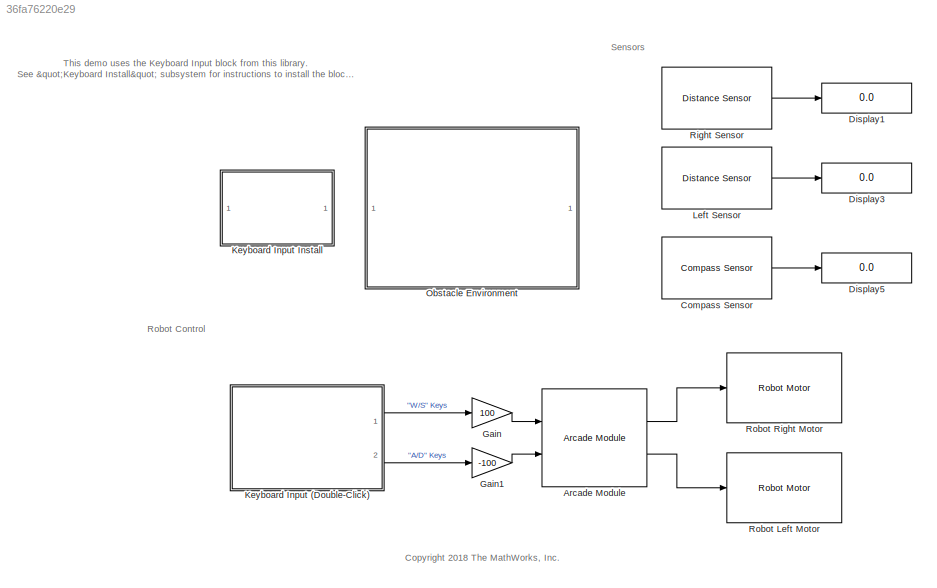
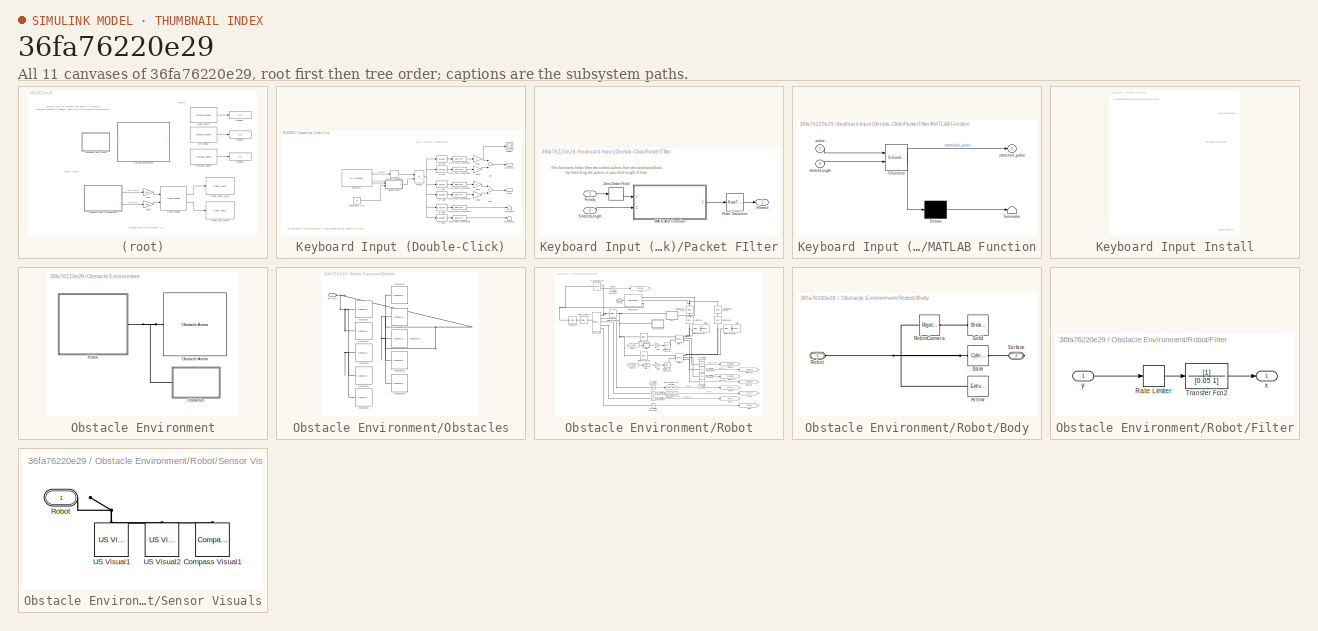
[diagram: thumbnail index - all 11 canvases of the model, root first then tree order]
MODEL slx_36fa76220e29
KIND model
CONFIG AbsTol = auto
CONFIG EnableMultiTasking = on
CONFIG FixedStep = 0.01
CONFIG InitFcn = RPInit
CONFIG MaxStep = auto
CONFIG MinStep = auto
CONFIG RelTol = 1e-3
CONFIG SampleTimeConstraint = Unconstrained
CONFIG Solver = ode23t
CONFIG SolverName = ode23t
CONFIG StartTime = 0.0
CONFIG StopTime = inf
WORKSPACE source: mxarray member
WORKSPACE mapForSim: object (value not decoded)
WORKSPACE occGrid: robotics.BinaryOccupancyGrid (value not decoded)
BLOCK [Reference] Arcade Module  REF=vexcommonlib/Arcade Module
  Ports = [2, 2]
  SourceBlock = vexcommonlib/Arcade Module
  SourceProductBaseCode = EC_VEX_MICRO
  SourceProductName = Simulink Coder Support Package for ARM Cortex-based VEX Microcontroller
  SourceType = Arcade-2 Motors Module
BLOCK [Reference] Compass Sensor  REF=RoboticsPlayground/Basic Sensors and Actuators/Compass Sensor
  Ports = [0, 1]
  SourceBlock = RoboticsPlayground/Basic Sensors and Actuators/Compass Sensor
  SourceProductName = Robotics Playground
  SourceType = RP Compass Sensor
BLOCK [Display] Display1
  Decimation = 1
  Ports = [1]
BLOCK [Display] Display3
  Decimation = 1
  Ports = [1]
BLOCK [Display] Display5
  Decimation = 1
  Ports = [1]
BLOCK [Gain] Gain
  Gain = 100
  OutDataTypeStr = Inherit: Inherit via internal rule
  ParamDataTypeStr = Inherit: Inherit via internal rule
  SaturateOnIntegerOverflow = off
BLOCK [Gain] Gain1
  Gain = -100
  OutDataTypeStr = Inherit: Inherit via internal rule
  ParamDataTypeStr = Inherit: Inherit via internal rule
  SaturateOnIntegerOverflow = off
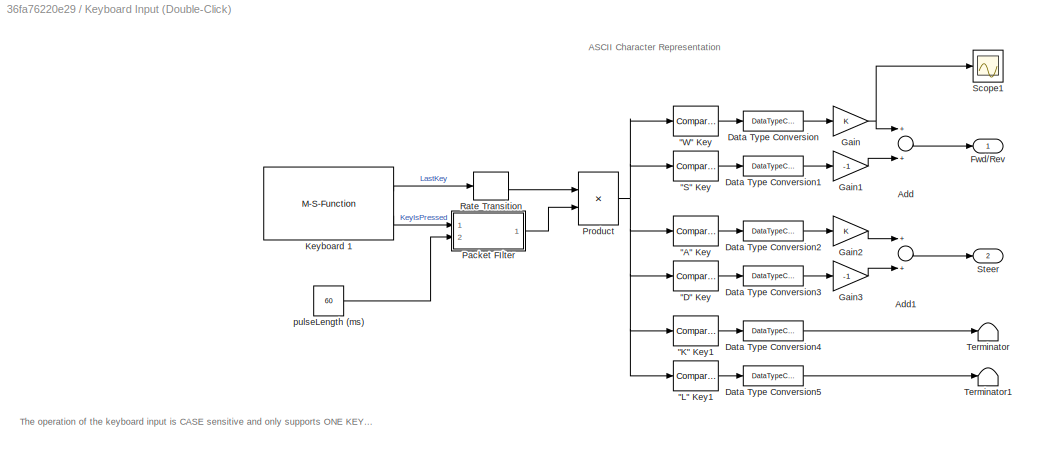
BLOCK [SubSystem] Keyboard Input (Double-Click)
  Ports = [0, 2]
  RequestExecContextInheritance = off
BLOCK [Reference] Keyboard Input (Double-Click)/"A" Key  REF=simulink/Logic and Bit
Operations/Compare
To Constant
  Ports = [1, 1]
  SourceBlock = simulink/Logic and Bit\nOperations/Compare\nTo Constant
  SourceProductBaseCode = SL
  SourceType = Compare To Constant
BLOCK [Reference] Keyboard Input (Double-Click)/"D" Key  REF=simulink/Logic and Bit
Operations/Compare
To Constant
  Ports = [1, 1]
  SourceBlock = simulink/Logic and Bit\nOperations/Compare\nTo Constant
  SourceProductBaseCode = SL
  SourceType = Compare To Constant
BLOCK [Reference] Keyboard Input (Double-Click)/"K" Key1  REF=simulink/Logic and Bit
Operations/Compare
To Constant
  Ports = [1, 1]
  SourceBlock = simulink/Logic and Bit\nOperations/Compare\nTo Constant
  SourceProductBaseCode = SL
  SourceType = Compare To Constant
BLOCK [Reference] Keyboard Input (Double-Click)/"L" Key1  REF=simulink/Logic and Bit
Operations/Compare
To Constant
  Ports = [1, 1]
  SourceBlock = simulink/Logic and Bit\nOperations/Compare\nTo Constant
  SourceProductBaseCode = SL
  SourceType = Compare To Constant
BLOCK [Reference] Keyboard Input (Double-Click)/"S" Key  REF=simulink/Logic and Bit
Operations/Compare
To Constant
  Ports = [1, 1]
  SourceBlock = simulink/Logic and Bit\nOperations/Compare\nTo Constant
  SourceProductBaseCode = SL
  SourceType = Compare To Constant
BLOCK [Reference] Keyboard Input (Double-Click)/"W" Key  REF=simulink/Logic and Bit
Operations/Compare
To Constant
  Ports = [1, 1]
  SourceBlock = simulink/Logic and Bit\nOperations/Compare\nTo Constant
  SourceProductBaseCode = SL
  SourceType = Compare To Constant
BLOCK [Sum] Keyboard Input (Double-Click)/Add
  InputSameDT = off
  OutDataTypeStr = Inherit: Inherit via internal rule
  Ports = [2, 1]
  SaturateOnIntegerOverflow = off
BLOCK [Sum] Keyboard Input (Double-Click)/Add1
  InputSameDT = off
  OutDataTypeStr = Inherit: Inherit via internal rule
  Ports = [2, 1]
  SaturateOnIntegerOverflow = off
BLOCK [DataTypeConversion] Keyboard Input (Double-Click)/Data Type Conversion
  OutDataTypeStr = double
  RndMeth = Floor
  SaturateOnIntegerOverflow = off
BLOCK [DataTypeConversion] Keyboard Input (Double-Click)/Data Type Conversion1
  OutDataTypeStr = double
  RndMeth = Floor
  SaturateOnIntegerOverflow = off
BLOCK [DataTypeConversion] Keyboard Input (Double-Click)/Data Type Conversion2
  OutDataTypeStr = double
  RndMeth = Floor
  SaturateOnIntegerOverflow = off
BLOCK [DataTypeConversion] Keyboard Input (Double-Click)/Data Type Conversion3
  OutDataTypeStr = double
  RndMeth = Floor
  SaturateOnIntegerOverflow = off
BLOCK [DataTypeConversion] Keyboard Input (Double-Click)/Data Type Conversion4
  OutDataTypeStr = double
  RndMeth = Floor
  SaturateOnIntegerOverflow = off
BLOCK [DataTypeConversion] Keyboard Input (Double-Click)/Data Type Conversion5
  OutDataTypeStr = double
  RndMeth = Floor
  SaturateOnIntegerOverflow = off
BLOCK [Outport] Keyboard Input (Double-Click)/Fwd//Rev
  IconDisplay = Port number
  VectorParamsAs1DForOutWhenUnconnected = off
BLOCK [Gain] Keyboard Input (Double-Click)/Gain
  OutDataTypeStr = Inherit: Inherit via internal rule
  ParamDataTypeStr = Inherit: Inherit via internal rule
  SaturateOnIntegerOverflow = off
BLOCK [Gain] Keyboard Input (Double-Click)/Gain1
  Gain = -1
  OutDataTypeStr = Inherit: Inherit via internal rule
  ParamDataTypeStr = Inherit: Inherit via internal rule
  SaturateOnIntegerOverflow = off
BLOCK [Gain] Keyboard Input (Double-Click)/Gain2
  OutDataTypeStr = Inherit: Inherit via internal rule
  ParamDataTypeStr = Inherit: Inherit via internal rule
  SaturateOnIntegerOverflow = off
BLOCK [Gain] Keyboard Input (Double-Click)/Gain3
  Gain = -1
  OutDataTypeStr = Inherit: Inherit via internal rule
  ParamDataTypeStr = Inherit: Inherit via internal rule
  SaturateOnIntegerOverflow = off
BLOCK [M-S-Function] Keyboard Input (Double-Click)/Keyboard 1
  FunctionName = sfun_keyboard_input_v1_2b
  Ports = [0, 2]
BLOCK [SubSystem] Keyboard Input (Double-Click)/Packet FIlter
  Ports = [2, 1]
  RequestExecContextInheritance = off
BLOCK [Outport] Keyboard Input (Double-Click)/Packet FIlter/Filtered
  IconDisplay = Port number
BLOCK [SubSystem] Keyboard Input (Double-Click)/Packet FIlter/MATLAB Function
  ErrorFcn = Stateflow.Translate.translate
  PermitHierarchicalResolution = ExplicitOnly
  Ports = [2, 1]
  RequestExecContextInheritance = off
  SFBlockType = MATLAB Function
  TreatAsAtomicUnit = on
BLOCK [Demux] Keyboard Input (Double-Click)/Packet FIlter/MATLAB Function/ Demux 
  DisplayOption = bar
  Outputs = 1
  Ports = [1, 1]
BLOCK [S-Function] Keyboard Input (Double-Click)/Packet FIlter/MATLAB Function/ SFunction 
  EnableBusSupport = on
  FunctionName = sf_sfun
  PortCounts = [2 2]
  Ports = [2, 2]
  SFcnIsStateOwnerBlock = off
  SFunctionDeploymentMode = off
  Tag = Stateflow S-Function 12
BLOCK [Terminator] Keyboard Input (Double-Click)/Packet FIlter/MATLAB Function/ Terminator 
BLOCK [Inport] Keyboard Input (Double-Click)/Packet FIlter/MATLAB Function/pulse
  IconDisplay = Port number
BLOCK [Inport] Keyboard Input (Double-Click)/Packet FIlter/MATLAB Function/stretchLength
  IconDisplay = Port number
  Port = 2
BLOCK [Outport] Keyboard Input (Double-Click)/Packet FIlter/MATLAB Function/stretched_pulse
  IconDisplay = Port number
  VectorParamsAs1DForOutWhenUnconnected = off
BLOCK [RateTransition] Keyboard Input (Double-Click)/Packet FIlter/Rate Transition
  OutPortSampleTime = 0.02
BLOCK [Inport] Keyboard Input (Double-Click)/Packet FIlter/Ready
  IconDisplay = Port number
BLOCK [Inport] Keyboard Input (Double-Click)/Packet FIlter/StretchLength
  IconDisplay = Port number
  Port = 2
BLOCK [ZeroOrderHold] Keyboard Input (Double-Click)/Packet FIlter/Zero-Order Hold
  SampleTime = 0.01
BLOCK [Product] Keyboard Input (Double-Click)/Product
  InputSameDT = off
  OutDataTypeStr = Inherit: Inherit via internal rule
  Ports = [2, 1]
  RndMeth = Floor
  SaturateOnIntegerOverflow = off
BLOCK [RateTransition] Keyboard Input (Double-Click)/Rate Transition
BLOCK [Scope] Keyboard Input (Double-Click)/Scope1
  Floating = off
  NumInputPorts = 1
  Ports = [1]
  ScopeSpecificationString = Simulink.scopes.TimeScopeBlockCfg('CurrentConfiguration', extmgr.ConfigurationSet(extmgr.Configuration('Core','General UI',true),extmgr.Configuration('Core','Source UI',true),extmgr.Configuration('Sources','WiredSimulink',true,'DataLoggingVariableName','ScopeData1'),extmgr.Configuration('Visuals','Time Domain',true,'SerializedDisplays',{struct('MinYLimReal','-0.125','MaxYLimReal','1.125','YLabelRe...<+1414ch>
BLOCK [Outport] Keyboard Input (Double-Click)/Steer
  IconDisplay = Port number
  Port = 2
  VectorParamsAs1DForOutWhenUnconnected = off
BLOCK [Terminator] Keyboard Input (Double-Click)/Terminator
BLOCK [Terminator] Keyboard Input (Double-Click)/Terminator1
BLOCK [Constant] Keyboard Input (Double-Click)/pulseLength (ms)
  Value = 60
BLOCK [SubSystem] Keyboard Input Install
  Ports = []
  RequestExecContextInheritance = off
BLOCK [Reference] Left Sensor  REF=RoboticsPlayground/Basic Sensors and Actuators/Distance Sensor
  Ports = [0, 1]
  SourceBlock = RoboticsPlayground/Basic Sensors and Actuators/Distance Sensor
  SourceProductName = Robotics Playground
  SourceType = RP Distance Sensor
BLOCK [SubSystem] Obstacle Environment
  CopyFcn = set_param(gcs,'InitFcn','RPInit');\nset_param(gcs,'Solver','ode23t');\nset_param(gcs, 'EnablePacing', 'on')\nset_param(gcs, 'PacingRate', 1)
  Ports = []
  RequestExecContextInheritance = off
BLOCK [Reference] Obstacle Environment/Obstacle Arena  REF=RP_Simulator_Components/Obstacle Arena
  Ports = [0, 0, 0, 0, 0, 1]
  SourceBlock = RP_Simulator_Components/Obstacle Arena
  SourceType = RP Grid Arena
BLOCK [SubSystem] Obstacle Environment/Obstacles
  Ports = [0, 0, 0, 0, 0, 1]
  RequestExecContextInheritance = off
BLOCK [Reference] Obstacle Environment/Obstacles/Obstacle1  REF=RP_Simulator_Components/Obstacle Contact-Disc Robot
  Ports = [0, 0, 0, 0, 0, 1]
  SourceBlock = RP_Simulator_Components/Obstacle Contact-Disc Robot
  SourceType = RP Rectangle-Disc obstacle
BLOCK [Reference] Obstacle Environment/Obstacles/Obstacle10  REF=RP_Simulator_Components/Obstacle Contact-Disc Robot
  Commented = on
  Ports = [0, 0, 0, 0, 0, 1]
  SourceBlock = RP_Simulator_Components/Obstacle Contact-Disc Robot
  SourceType = RP Rectangle-Disc obstacle
BLOCK [Reference] Obstacle Environment/Obstacles/Obstacle2  REF=RP_Simulator_Components/Obstacle Contact-Disc Robot
  Ports = [0, 0, 0, 0, 0, 1]
  SourceBlock = RP_Simulator_Components/Obstacle Contact-Disc Robot
  SourceType = RP Rectangle-Disc obstacle
BLOCK [Reference] Obstacle Environment/Obstacles/Obstacle3  REF=RP_Simulator_Components/Obstacle Contact-Disc Robot
  Commented = on
  Ports = [0, 0, 0, 0, 0, 1]
  SourceBlock = RP_Simulator_Components/Obstacle Contact-Disc Robot
  SourceType = RP Rectangle-Disc obstacle
BLOCK [Reference] Obstacle Environment/Obstacles/Obstacle4  REF=RP_Simulator_Components/Obstacle Contact-Disc Robot
  Commented = on
  Ports = [0, 0, 0, 0, 0, 1]
  SourceBlock = RP_Simulator_Components/Obstacle Contact-Disc Robot
  SourceType = RP Rectangle-Disc obstacle
BLOCK [Reference] Obstacle Environment/Obstacles/Obstacle5  REF=RP_Simulator_Components/Obstacle Contact-Disc Robot
  Commented = on
  Ports = [0, 0, 0, 0, 0, 1]
  SourceBlock = RP_Simulator_Components/Obstacle Contact-Disc Robot
  SourceType = RP Rectangle-Disc obstacle
BLOCK [Reference] Obstacle Environment/Obstacles/Obstacle6  REF=RP_Simulator_Components/Obstacle Contact-Disc Robot
  Commented = on
  Ports = [0, 0, 0, 0, 0, 1]
  SourceBlock = RP_Simulator_Components/Obstacle Contact-Disc Robot
  SourceType = RP Rectangle-Disc obstacle
BLOCK [Reference] Obstacle Environment/Obstacles/Obstacle7  REF=RP_Simulator_Components/Obstacle Contact-Disc Robot
  Commented = on
  Ports = [0, 0, 0, 0, 0, 1]
  SourceBlock = RP_Simulator_Components/Obstacle Contact-Disc Robot
  SourceType = RP Rectangle-Disc obstacle
BLOCK [Reference] Obstacle Environment/Obstacles/Obstacle8  REF=RP_Simulator_Components/Obstacle Contact-Disc Robot
  Commented = on
  Ports = [0, 0, 0, 0, 0, 1]
  SourceBlock = RP_Simulator_Components/Obstacle Contact-Disc Robot
  SourceType = RP Rectangle-Disc obstacle
BLOCK [Reference] Obstacle Environment/Obstacles/Obstacle9  REF=RP_Simulator_Components/Obstacle Contact-Disc Robot
  Commented = on
  Ports = [0, 0, 0, 0, 0, 1]
  SourceBlock = RP_Simulator_Components/Obstacle Contact-Disc Robot
  SourceType = RP Rectangle-Disc obstacle
BLOCK [PMIOPort] Obstacle Environment/Obstacles/RP-Bus
  Side = Left
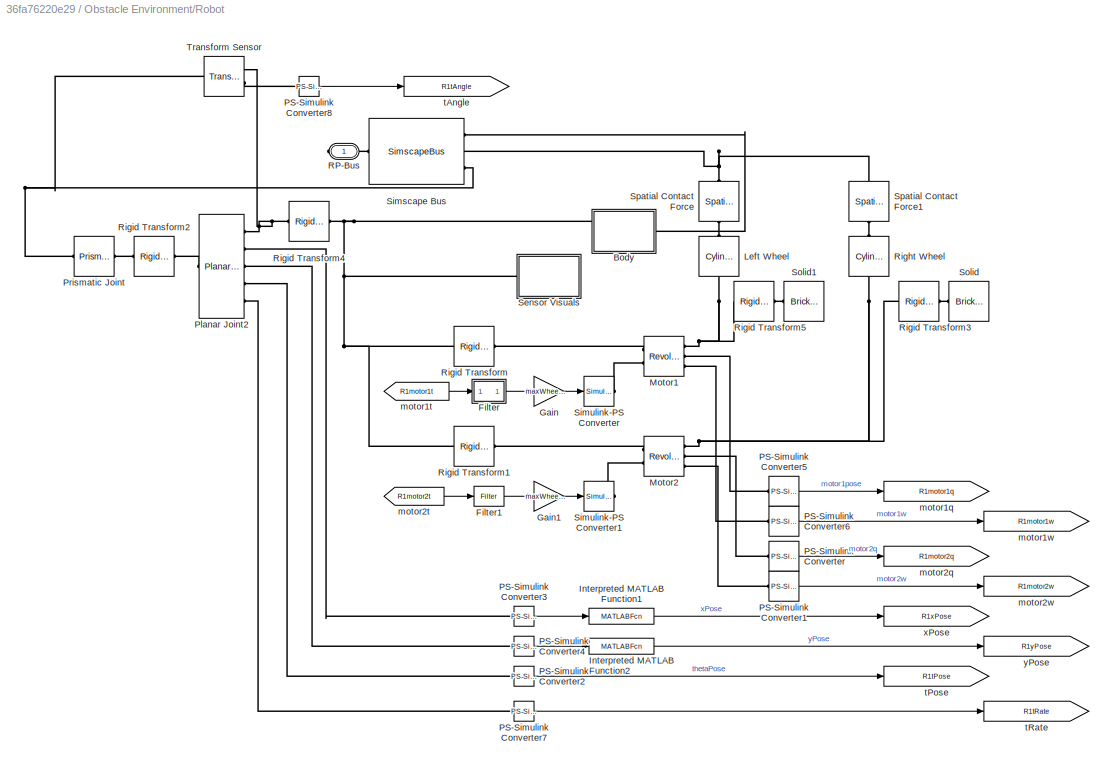
BLOCK [SubSystem] Obstacle Environment/Robot
  AncestorBlock = RP_Simulator_Components/Contact Tank Robot
  Ports = [0, 0, 0, 0, 0, 0, 1]
  RequestExecContextInheritance = off
BLOCK [SubSystem] Obstacle Environment/Robot/Body
  Ports = [0, 0, 0, 0, 0, 1, 1]
  RequestExecContextInheritance = off
BLOCK [Reference] Obstacle Environment/Robot/Body/Arrow  REF=sm_lib/Body Elements/Extruded Solid
  Ports = [0, 0, 0, 0, 0, 0, 1]
  SourceBlock = sm_lib/Body Elements/Extruded Solid
  SourceProductBaseCode = MS
  SourceProductName = Simscape Multibody
  SourceType = Extruded Solid
BLOCK [Reference] Obstacle Environment/Robot/Body/Base  REF=sm_lib/Body Elements/Cylindrical Solid
  Ports = [0, 0, 0, 0, 0, 1, 1]
  SourceBlock = sm_lib/Body Elements/Cylindrical Solid
  SourceProductBaseCode = MS
  SourceProductName = Simscape Multibody
  SourceType = Cylindrical Solid
BLOCK [PMIOPort] Obstacle Environment/Robot/Body/Robot
  Side = Left
BLOCK [Reference] Obstacle Environment/Robot/Body/RobotCamera  REF=sm_lib/Frames and
Transforms/Rigid
Transform
  Ports = [0, 0, 0, 0, 0, 1, 1]
  SourceBlock = sm_lib/Frames and\nTransforms/Rigid\nTransform
  SourceProductBaseCode = MS
  SourceProductName = Simscape Multibody
  SourceType = Rigid\nTransform
BLOCK [Reference] Obstacle Environment/Robot/Body/Solid  REF=sm_lib/Body Elements/Brick Solid
  Ports = [0, 0, 0, 0, 0, 0, 1]
  SourceBlock = sm_lib/Body Elements/Brick Solid
  SourceProductBaseCode = MS
  SourceProductName = Simscape Multibody
  SourceType = Brick Solid
BLOCK [PMIOPort] Obstacle Environment/Robot/Body/Surface
  Port = 2
  Side = Right
BLOCK [SubSystem] Obstacle Environment/Robot/Filter
  Ports = [1, 1]
  RequestExecContextInheritance = off
BLOCK [RateLimiter] Obstacle Environment/Robot/Filter/Rate Limiter
  FallingSlewLimit = -300
  RisingSlewLimit = 300
  SampleTimeMode = inherited
BLOCK [TransferFcn] Obstacle Environment/Robot/Filter/Transfer Fcn2
  Denominator = [0.05 1]
BLOCK [Outport] Obstacle Environment/Robot/Filter/x
  IconDisplay = Port number
  VectorParamsAs1DForOutWhenUnconnected = off
BLOCK [Inport] Obstacle Environment/Robot/Filter/y
  IconDisplay = Port number
BLOCK [Reference] Obstacle Environment/Robot/Filter1  REF=RP_Simulator_Components/Contact Tank Robot/Filter
  Ports = [1, 1]
  SourceBlock = RP_Simulator_Components/Contact Tank Robot/Filter
  SourceType = SubSystem
BLOCK [Gain] Obstacle Environment/Robot/Gain
  Gain = maxWheelTorque/127
  OutDataTypeStr = Inherit: Inherit via internal rule
  ParamDataTypeStr = Inherit: Inherit via internal rule
  SaturateOnIntegerOverflow = off
BLOCK [Gain] Obstacle Environment/Robot/Gain1
  Gain = maxWheelTorque/127
  OutDataTypeStr = Inherit: Inherit via internal rule
  ParamDataTypeStr = Inherit: Inherit via internal rule
  SaturateOnIntegerOverflow = off
BLOCK [MATLABFcn] Obstacle Environment/Robot/Interpreted MATLAB Function1
  MATLABFcn = u+floorSize(1)/2
  Ports = [1, 1]
BLOCK [MATLABFcn] Obstacle Environment/Robot/Interpreted MATLAB Function2
  MATLABFcn = u+floorSize(2)/2
  Ports = [1, 1]
BLOCK [Reference] Obstacle Environment/Robot/Left Wheel  REF=sm_lib/Body Elements/Cylindrical Solid
  Ports = [0, 0, 0, 0, 0, 1, 1]
  SourceBlock = sm_lib/Body Elements/Cylindrical Solid
  SourceProductBaseCode = MS
  SourceProductName = Simscape Multibody
  SourceType = Cylindrical Solid
BLOCK [Reference] Obstacle Environment/Robot/Motor1  REF=sm_lib/Joints/Revolute Joint
  Ports = [0, 0, 0, 0, 0, 2, 3]
  SourceBlock = sm_lib/Joints/Revolute Joint
  SourceProductBaseCode = MS
  SourceProductName = Simscape Multibody
  SourceType = Revolute Joint
BLOCK [Reference] Obstacle Environment/Robot/Motor2  REF=sm_lib/Joints/Revolute Joint
  Ports = [0, 0, 0, 0, 0, 2, 3]
  SourceBlock = sm_lib/Joints/Revolute Joint
  SourceProductBaseCode = MS
  SourceProductName = Simscape Multibody
  SourceType = Revolute Joint
BLOCK [Reference] Obstacle Environment/Robot/PS-Simulink Converter  REF=nesl_utility/PS-Simulink
Converter
  Ports = [0, 1, 0, 0, 0, 1]
  SourceBlock = nesl_utility/PS-Simulink\nConverter
  SourceProductBaseCode = SS
  SourceProductName = Simscape
  SourceType = PS-Simulink\nConverter
BLOCK [Reference] Obstacle Environment/Robot/PS-Simulink Converter1  REF=nesl_utility/PS-Simulink
Converter
  Ports = [0, 1, 0, 0, 0, 1]
  SourceBlock = nesl_utility/PS-Simulink\nConverter
  SourceProductBaseCode = SS
  SourceProductName = Simscape
  SourceType = PS-Simulink\nConverter
BLOCK [Reference] Obstacle Environment/Robot/PS-Simulink Converter2  REF=nesl_utility/PS-Simulink
Converter
  Ports = [0, 1, 0, 0, 0, 1]
  SourceBlock = nesl_utility/PS-Simulink\nConverter
  SourceProductBaseCode = SS
  SourceProductName = Simscape
  SourceType = PS-Simulink\nConverter
BLOCK [Reference] Obstacle Environment/Robot/PS-Simulink Converter3  REF=nesl_utility/PS-Simulink
Converter
  Ports = [0, 1, 0, 0, 0, 1]
  SourceBlock = nesl_utility/PS-Simulink\nConverter
  SourceProductBaseCode = SS
  SourceProductName = Simscape
  SourceType = PS-Simulink\nConverter
BLOCK [Reference] Obstacle Environment/Robot/PS-Simulink Converter4  REF=nesl_utility/PS-Simulink
Converter
  Ports = [0, 1, 0, 0, 0, 1]
  SourceBlock = nesl_utility/PS-Simulink\nConverter
  SourceProductBaseCode = SS
  SourceProductName = Simscape
  SourceType = PS-Simulink\nConverter
BLOCK [Reference] Obstacle Environment/Robot/PS-Simulink Converter5  REF=nesl_utility/PS-Simulink
Converter
  Ports = [0, 1, 0, 0, 0, 1]
  SourceBlock = nesl_utility/PS-Simulink\nConverter
  SourceProductBaseCode = SS
  SourceProductName = Simscape
  SourceType = PS-Simulink\nConverter
BLOCK [Reference] Obstacle Environment/Robot/PS-Simulink Converter6  REF=nesl_utility/PS-Simulink
Converter
  Ports = [0, 1, 0, 0, 0, 1]
  SourceBlock = nesl_utility/PS-Simulink\nConverter
  SourceProductBaseCode = SS
  SourceProductName = Simscape
  SourceType = PS-Simulink\nConverter
BLOCK [Reference] Obstacle Environment/Robot/PS-Simulink Converter7  REF=nesl_utility/PS-Simulink
Converter
  Ports = [0, 1, 0, 0, 0, 1]
  SourceBlock = nesl_utility/PS-Simulink\nConverter
  SourceProductBaseCode = SS
  SourceProductName = Simscape
  SourceType = PS-Simulink\nConverter
BLOCK [Reference] Obstacle Environment/Robot/PS-Simulink Converter8  REF=nesl_utility/PS-Simulink
Converter
  Ports = [0, 1, 0, 0, 0, 1]
  SourceBlock = nesl_utility/PS-Simulink\nConverter
  SourceProductBaseCode = SS
  SourceProductName = Simscape
  SourceType = PS-Simulink\nConverter
BLOCK [Reference] Obstacle Environment/Robot/Planar Joint2  REF=sm_lib/Joints/Planar Joint
  Ports = [0, 0, 0, 0, 0, 1, 5]
  SourceBlock = sm_lib/Joints/Planar Joint
  SourceProductBaseCode = MS
  SourceProductName = Simscape Multibody
  SourceType = Planar Joint
BLOCK [Reference] Obstacle Environment/Robot/Prismatic Joint  REF=sm_lib/Joints/Prismatic
Joint
  Ports = [0, 0, 0, 0, 0, 1, 1]
  SourceBlock = sm_lib/Joints/Prismatic\nJoint
  SourceProductBaseCode = MS
  SourceProductName = Simscape Multibody
  SourceType = Prismatic\nJoint
BLOCK [PMIOPort] Obstacle Environment/Robot/RP-Bus
  Side = Right
BLOCK [Reference] Obstacle Environment/Robot/Right Wheel  REF=sm_lib/Body Elements/Cylindrical Solid
  Ports = [0, 0, 0, 0, 0, 1, 1]
  SourceBlock = sm_lib/Body Elements/Cylindrical Solid
  SourceProductBaseCode = MS
  SourceProductName = Simscape Multibody
  SourceType = Cylindrical Solid
BLOCK [Reference] Obstacle Environment/Robot/Rigid Transform  REF=sm_lib/Frames and
Transforms/Rigid
Transform
  Ports = [0, 0, 0, 0, 0, 1, 1]
  SourceBlock = sm_lib/Frames and\nTransforms/Rigid\nTransform
  SourceProductBaseCode = MS
  SourceProductName = Simscape Multibody
  SourceType = Rigid\nTransform
BLOCK [Reference] Obstacle Environment/Robot/Rigid Transform1  REF=sm_lib/Frames and
Transforms/Rigid
Transform
  Ports = [0, 0, 0, 0, 0, 1, 1]
  SourceBlock = sm_lib/Frames and\nTransforms/Rigid\nTransform
  SourceProductBaseCode = MS
  SourceProductName = Simscape Multibody
  SourceType = Rigid\nTransform
BLOCK [Reference] Obstacle Environment/Robot/Rigid Transform2  REF=sm_lib/Frames and
Transforms/Rigid
Transform
  Ports = [0, 0, 0, 0, 0, 1, 1]
  SourceBlock = sm_lib/Frames and\nTransforms/Rigid\nTransform
  SourceProductBaseCode = MS
  SourceProductName = Simscape Multibody
  SourceType = Rigid\nTransform
BLOCK [Reference] Obstacle Environment/Robot/Rigid Transform3  REF=sm_lib/Frames and
Transforms/Rigid
Transform
  Ports = [0, 0, 0, 0, 0, 1, 1]
  SourceBlock = sm_lib/Frames and\nTransforms/Rigid\nTransform
  SourceProductBaseCode = MS
  SourceProductName = Simscape Multibody
  SourceType = Rigid\nTransform
BLOCK [Reference] Obstacle Environment/Robot/Rigid Transform4  REF=sm_lib/Frames and
Transforms/Rigid
Transform
  Ports = [0, 0, 0, 0, 0, 1, 1]
  SourceBlock = sm_lib/Frames and\nTransforms/Rigid\nTransform
  SourceProductBaseCode = MS
  SourceProductName = Simscape Multibody
  SourceType = Rigid\nTransform
BLOCK [Reference] Obstacle Environment/Robot/Rigid Transform5  REF=sm_lib/Frames and
Transforms/Rigid
Transform
  Ports = [0, 0, 0, 0, 0, 1, 1]
  SourceBlock = sm_lib/Frames and\nTransforms/Rigid\nTransform
  SourceProductBaseCode = MS
  SourceProductName = Simscape Multibody
  SourceType = Rigid\nTransform
BLOCK [SubSystem] Obstacle Environment/Robot/Sensor Visuals
  Ports = [0, 0, 0, 0, 0, 1]
  RequestExecContextInheritance = off
BLOCK [Reference] Obstacle Environment/Robot/Sensor Visuals/Compass Visual1  REF=RP_Simulator_Components/Compass Visual
  Ports = [0, 0, 0, 0, 0, 1]
  SourceBlock = RP_Simulator_Components/Compass Visual
  SourceType = RP Compass Visual
BLOCK [PMIOPort] Obstacle Environment/Robot/Sensor Visuals/Robot
  Side = Left
BLOCK [Reference] Obstacle Environment/Robot/Sensor Visuals/US Visual1  REF=RP_Simulator_Components/US Visual
  Ports = [0, 0, 0, 0, 0, 1]
  SourceBlock = RP_Simulator_Components/US Visual
  SourceType = RP US Visual
BLOCK [Reference] Obstacle Environment/Robot/Sensor Visuals/US Visual2  REF=RP_Simulator_Components/US Visual
  Ports = [0, 0, 0, 0, 0, 1]
  SourceBlock = RP_Simulator_Components/US Visual
  SourceType = RP US Visual
BLOCK [SimscapeBus] Obstacle Environment/Robot/Simscape Bus
  HierarchyStrings = RobotSurface;FloorSurface;Ref
  Ports = [0, 0, 0, 0, 0, 3, 1]
BLOCK [Reference] Obstacle Environment/Robot/Simulink-PS Converter  REF=nesl_utility/Simulink-PS
Converter
  Ports = [1, 0, 0, 0, 0, 0, 1]
  SourceBlock = nesl_utility/Simulink-PS\nConverter
  SourceProductBaseCode = SS
  SourceProductName = Simscape
  SourceType = Simulink-PS\nConverter
BLOCK [Reference] Obstacle Environment/Robot/Simulink-PS Converter1  REF=nesl_utility/Simulink-PS
Converter
  Ports = [1, 0, 0, 0, 0, 0, 1]
  SourceBlock = nesl_utility/Simulink-PS\nConverter
  SourceProductBaseCode = SS
  SourceProductName = Simscape
  SourceType = Simulink-PS\nConverter
BLOCK [Reference] Obstacle Environment/Robot/Solid  REF=sm_lib/Body Elements/Brick Solid
  Ports = [0, 0, 0, 0, 0, 0, 1]
  SourceBlock = sm_lib/Body Elements/Brick Solid
  SourceProductBaseCode = MS
  SourceProductName = Simscape Multibody
  SourceType = Brick Solid
BLOCK [Reference] Obstacle Environment/Robot/Solid1  REF=sm_lib/Body Elements/Brick Solid
  Ports = [0, 0, 0, 0, 0, 0, 1]
  SourceBlock = sm_lib/Body Elements/Brick Solid
  SourceProductBaseCode = MS
  SourceProductName = Simscape Multibody
  SourceType = Brick Solid
BLOCK [Reference] Obstacle Environment/Robot/Spatial Contact Force  REF=sm_lib/Forces and
Torques/Spatial
Contact Force
  Ports = [0, 0, 0, 0, 0, 1, 1]
  SourceBlock = sm_lib/Forces and\nTorques/Spatial\nContact Force
  SourceProductBaseCode = MS
  SourceProductName = Simscape Multibody
  SourceType = Spatial\nContact Force
BLOCK [Reference] Obstacle Environment/Robot/Spatial Contact Force1  REF=sm_lib/Forces and
Torques/Spatial
Contact Force
  Ports = [0, 0, 0, 0, 0, 1, 1]
  SourceBlock = sm_lib/Forces and\nTorques/Spatial\nContact Force
  SourceProductBaseCode = MS
  SourceProductName = Simscape Multibody
  SourceType = Spatial\nContact Force
BLOCK [Reference] Obstacle Environment/Robot/Transform Sensor  REF=sm_lib/Frames and
Transforms/Transform
Sensor
  Ports = [0, 0, 0, 0, 0, 1, 2]
  SourceBlock = sm_lib/Frames and\nTransforms/Transform\nSensor
  SourceProductBaseCode = MS
  SourceProductName = Simscape Multibody
  SourceType = Transform\nSensor
BLOCK [Goto] Obstacle Environment/Robot/motor1q
  GotoTag = R1motor1q
  TagVisibility = global
BLOCK [From] Obstacle Environment/Robot/motor1t
  GotoTag = R1motor1t
  TagVisibility = global
BLOCK [Goto] Obstacle Environment/Robot/motor1w
  GotoTag = R1motor1w
  TagVisibility = global
BLOCK [Goto] Obstacle Environment/Robot/motor2q
  GotoTag = R1motor2q
  TagVisibility = global
BLOCK [From] Obstacle Environment/Robot/motor2t
  GotoTag = R1motor2t
  TagVisibility = global
BLOCK [Goto] Obstacle Environment/Robot/motor2w
  GotoTag = R1motor2w
  TagVisibility = global
BLOCK [Goto] Obstacle Environment/Robot/tAngle
  GotoTag = R1tAngle
  TagVisibility = global
BLOCK [Goto] Obstacle Environment/Robot/tPose
  GotoTag = R1tPose
  TagVisibility = global
BLOCK [Goto] Obstacle Environment/Robot/tRate
  GotoTag = R1tRate
  TagVisibility = global
BLOCK [Goto] Obstacle Environment/Robot/xPose
  GotoTag = R1xPose
  TagVisibility = global
BLOCK [Goto] Obstacle Environment/Robot/yPose
  GotoTag = R1yPose
  TagVisibility = global
BLOCK [Reference] Right Sensor  REF=RoboticsPlayground/Basic Sensors and Actuators/Distance Sensor
  Ports = [0, 1]
  SourceBlock = RoboticsPlayground/Basic Sensors and Actuators/Distance Sensor
  SourceProductName = Robotics Playground
  SourceType = RP Distance Sensor
BLOCK [Reference] Robot Left Motor  REF=RoboticsPlayground/Basic Sensors and Actuators/Robot Motor
  Ports = [1]
  SourceBlock = RoboticsPlayground/Basic Sensors and Actuators/Robot Motor
  SourceProductName = Robotics Playground
  SourceType = RP Robot Motor
BLOCK [Reference] Robot Right Motor  REF=RoboticsPlayground/Basic Sensors and Actuators/Robot Motor
  Ports = [1]
  SourceBlock = RoboticsPlayground/Basic Sensors and Actuators/Robot Motor
  SourceProductName = Robotics Playground
  SourceType = RP Robot Motor
ANNOTATION (root): This demo uses the Keyboard Input block from this library . See "Keyboard Install" subsystem for instructions to install the block.
ANNOTATION (root): <copyright redacted>
ANNOTATION (root): Robot Control
ANNOTATION (root): Sensors
ANNOTATION Keyboard Input (Double-Click): ASCII Character Representation
ANNOTATION Keyboard Input (Double-Click): The operation of the keyboard input is CASE sensitive and only supports ONE KEY PRESSED at any given time
ANNOTATION Keyboard Input (Double-Click)/Packet FIlter: This functions helps filter the control pulses from the keyboard block by stretching the pulses a specified length of time
ANNOTATION Keyboard Input Install: 1. Open Add-On explorer
ANNOTATION Keyboard Input Install: 2. Find Simulink Keyboard Input V2
ANNOTATION Keyboard Input Install: 3. Add library to MATLAB
ANNOTATION Keyboard Input Install: Instructions to install Keyboard input block using Add-ons explorer
LINE Arcade Module:1 -> Robot Right Motor:1
LINE Arcade Module:2 -> Robot Left Motor:1
LINE Compass Sensor:1 -> Display5:1
LINE Gain1:1 -> Arcade Module:2
LINE Gain:1 -> Arcade Module:1
LINE Keyboard Input (Double-Click)/"A" Key:1 -> Keyboard Input (Double-Click)/Data Type Conversion2:1
LINE Keyboard Input (Double-Click)/"D" Key:1 -> Keyboard Input (Double-Click)/Data Type Conversion3:1
LINE Keyboard Input (Double-Click)/"K" Key1:1 -> Keyboard Input (Double-Click)/Data Type Conversion4:1
LINE Keyboard Input (Double-Click)/"L" Key1:1 -> Keyboard Input (Double-Click)/Data Type Conversion5:1
LINE Keyboard Input (Double-Click)/"S" Key:1 -> Keyboard Input (Double-Click)/Data Type Conversion1:1
LINE Keyboard Input (Double-Click)/"W" Key:1 -> Keyboard Input (Double-Click)/Data Type Conversion:1
LINE Keyboard Input (Double-Click)/Add1:1 -> Keyboard Input (Double-Click)/Steer:1
LINE Keyboard Input (Double-Click)/Add:1 -> Keyboard Input (Double-Click)/Fwd//Rev:1
LINE Keyboard Input (Double-Click)/Data Type Conversion1:1 -> Keyboard Input (Double-Click)/Gain1:1
LINE Keyboard Input (Double-Click)/Data Type Conversion2:1 -> Keyboard Input (Double-Click)/Gain2:1
LINE Keyboard Input (Double-Click)/Data Type Conversion3:1 -> Keyboard Input (Double-Click)/Gain3:1
LINE Keyboard Input (Double-Click)/Data Type Conversion4:1 -> Keyboard Input (Double-Click)/Terminator:1
LINE Keyboard Input (Double-Click)/Data Type Conversion5:1 -> Keyboard Input (Double-Click)/Terminator1:1
LINE Keyboard Input (Double-Click)/Data Type Conversion:1 -> Keyboard Input (Double-Click)/Gain:1
LINE Keyboard Input (Double-Click)/Gain1:1 -> Keyboard Input (Double-Click)/Add:2
LINE Keyboard Input (Double-Click)/Gain2:1 -> Keyboard Input (Double-Click)/Add1:1
LINE Keyboard Input (Double-Click)/Gain3:1 -> Keyboard Input (Double-Click)/Add1:2
NET Keyboard Input (Double-Click)/Gain:1 -> Keyboard Input (Double-Click)/Add:1, Keyboard Input (Double-Click)/Scope1:1
LINE Keyboard Input (Double-Click)/Keyboard 1:1 -> Keyboard Input (Double-Click)/Rate Transition:1
LINE Keyboard Input (Double-Click)/Keyboard 1:2 -> Keyboard Input (Double-Click)/Packet FIlter:1
LINE Keyboard Input (Double-Click)/Packet FIlter/MATLAB Function:1 -> Keyboard Input (Double-Click)/Packet FIlter/Rate Transition:1
LINE Keyboard Input (Double-Click)/Packet FIlter/Rate Transition:1 -> Keyboard Input (Double-Click)/Packet FIlter/Filtered:1
LINE Keyboard Input (Double-Click)/Packet FIlter/Ready:1 -> Keyboard Input (Double-Click)/Packet FIlter/Zero-Order Hold:1
LINE Keyboard Input (Double-Click)/Packet FIlter/StretchLength:1 -> Keyboard Input (Double-Click)/Packet FIlter/MATLAB Function:2
LINE Keyboard Input (Double-Click)/Packet FIlter/Zero-Order Hold:1 -> Keyboard Input (Double-Click)/Packet FIlter/MATLAB Function:1
LINE Keyboard Input (Double-Click)/Packet FIlter:1 -> Keyboard Input (Double-Click)/Product:2
NET Keyboard Input (Double-Click)/Product:1 -> Keyboard Input (Double-Click)/"A" Key:1, Keyboard Input (Double-Click)/"D" Key:1, Keyboard Input (Double-Click)/"K" Key1:1, Keyboard Input (Double-Click)/"L" Key1:1, Keyboard Input (Double-Click)/"S" Key:1, Keyboard Input (Double-Click)/"W" Key:1
LINE Keyboard Input (Double-Click)/Rate Transition:1 -> Keyboard Input (Double-Click)/Product:1
LINE Keyboard Input (Double-Click)/pulseLength (ms):1 -> Keyboard Input (Double-Click)/Packet FIlter:2
LINE Keyboard Input (Double-Click):1 -> Gain:1
LINE Keyboard Input (Double-Click):2 -> Gain1:1
LINE Left Sensor:1 -> Display3:1
LINE Right Sensor:1 -> Display1:1
note: NET lines group one-source signal fan-out (src -> all destinations, sorted); 1:1 wires keep LINE
CHART Keyboard Input (Double-Click)/Packet FIlter/MATLAB Function states=1 transitions=1
  STATE_LABEL 'eML_blk_kernel()'
  STATE_LABEL 'SCRIPT:\nfunction stretched_pulse = fcn(pulse, stretchLength)\n%#codegen\npersistent count\nif isempty(count)\n    count = 0;\nend\n\nif pulse == true\n    count = stretchLength;\nelseif count > 0\n    count = count -1;\nend\n\nstretched_pulse = (count >0);\n    '
